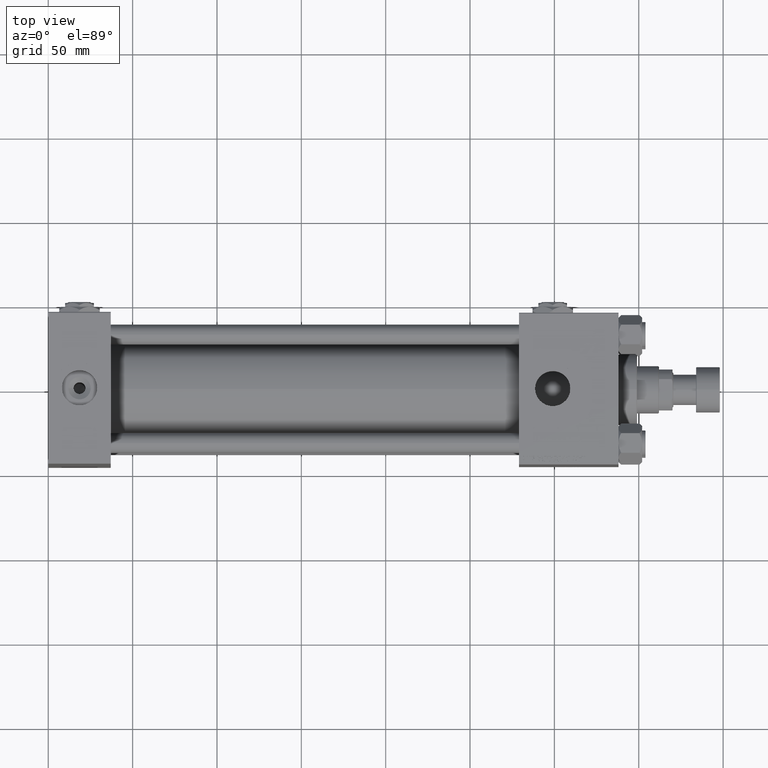
[diagram: clean part render]
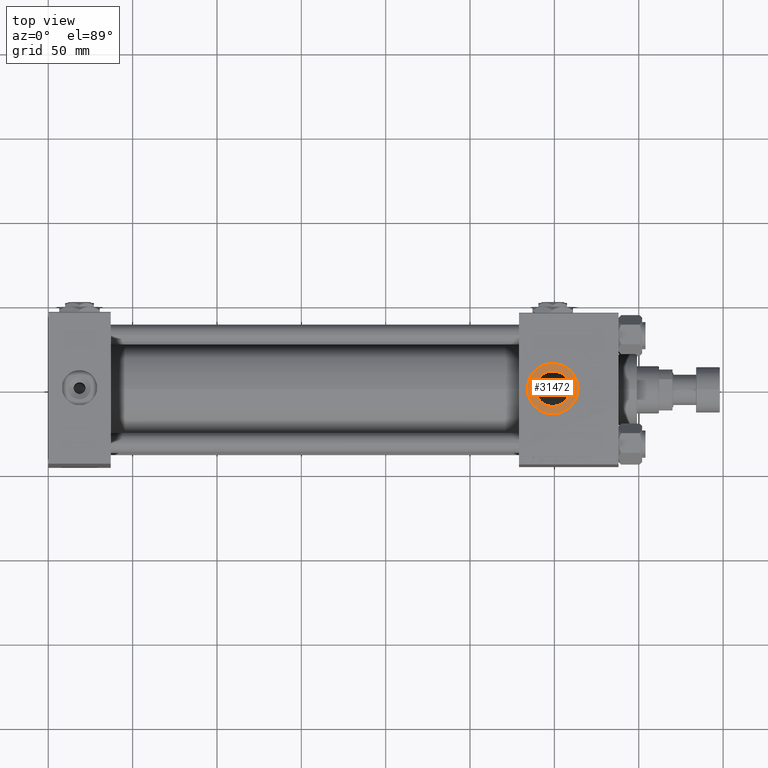
[diagram: same view with one face highlighted and labeled with its STEP entity id]
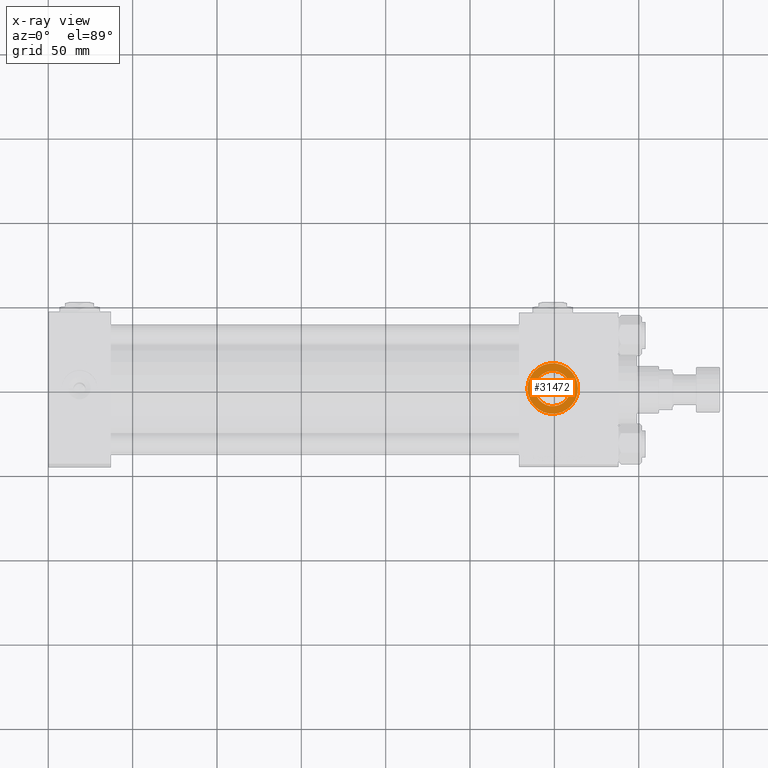
[diagram: x-ray of the same camera — body ghosted, the highlighted face saturated]
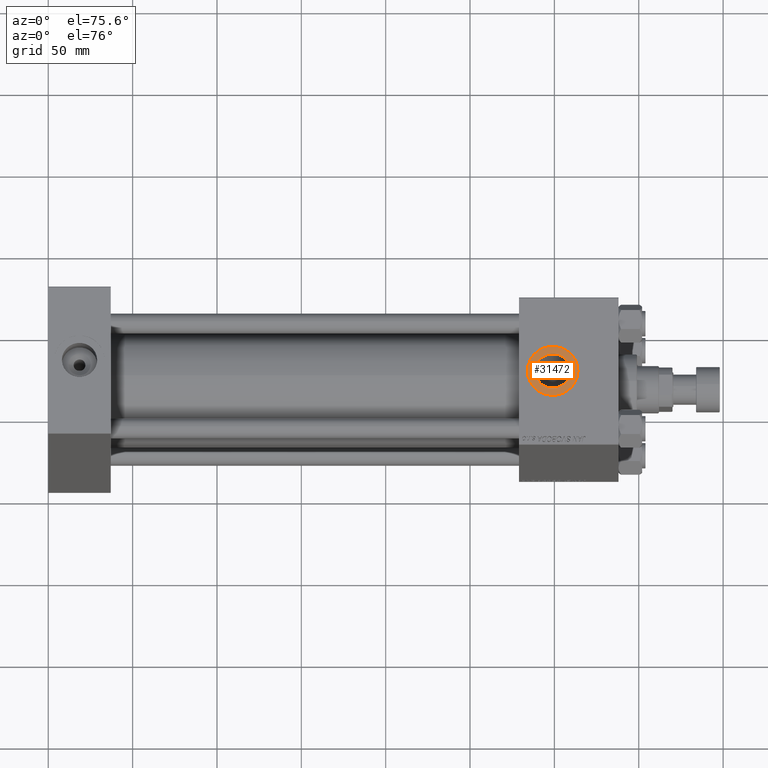
[diagram: same view with one face highlighted and labeled with its STEP entity id]
A machine part, top view. The second image highlights one B-rep face of the part: STEP entity #31472.
The next image is the same camera in x-ray: the body ghosted, the highlighted face saturated — about 0% of this face is hidden behind the body in this view.
A second angle (auxiliary view) of the same face is appended — the face is thin or edge-on in the first view.
In plain terms, the highlighted planar face has unit normal (0, 0, 1).
Its self-contained STEP definition (entity closure, byte-faithful):
#1132 = AXIS2_PLACEMENT_3D ( 'NONE', #52519, #27578, #27842 ) ;
#3366 = DIRECTION ( 'NONE',  ( 1.000000000000000000, 0.000000000000000000, 0.000000000000000000 ) ) ;
#3624 = CARTESIAN_POINT ( 'NONE',  ( 299.0000000000000000, -6.938893903907227589E-15, 44.79999999999999005 ) ) ;
#4013 = DIRECTION ( 'NONE',  ( 1.000000000000000000, 0.000000000000000000, -0.000000000000000000 ) ) ;
#4142 = DIRECTION ( 'NONE',  ( 0.000000000000000000, 0.000000000000000000, 1.000000000000000000 ) ) ;
#4542 = CARTESIAN_POINT ( 'NONE',  ( 309.4799999999999613, -6.938893903907227589E-15, 44.79999999999999005 ) ) ;
#6343 = ORIENTED_EDGE ( 'NONE', *, *, #28829, .F. ) ;
#7454 = AXIS2_PLACEMENT_3D ( 'NONE', #20307, #36481, #52173 ) ;
#7609 = DIRECTION ( 'NONE',  ( 0.000000000000000000, 0.000000000000000000, 1.000000000000000000 ) ) ;
#11323 = CIRCLE ( 'NONE', #1132, 10.47999999999998977 ) ;
#12083 = AXIS2_PLACEMENT_3D ( 'NONE', #40554, #4142, #36564 ) ;
#13289 = ORIENTED_EDGE ( 'NONE', *, *, #27301, .T. ) ;
#13703 = CARTESIAN_POINT ( 'NONE',  ( 314.0000000000000000, -6.938893903907227589E-15, 44.79999999999999005 ) ) ;
#15176 = VERTEX_POINT ( 'NONE', #13703 ) ;
#15688 = CARTESIAN_POINT ( 'NONE',  ( 284.0000000000000000, -5.101923705186193267E-15, 44.79999999999999005 ) ) ;
#20307 = CARTESIAN_POINT ( 'NONE',  ( 299.0000000000000000, -6.938893903907227589E-15, 44.79999999999999005 ) ) ;
#22706 = EDGE_LOOP ( 'NONE', ( #34649, #13289 ) ) ;
#24513 = FACE_OUTER_BOUND ( 'NONE', #22706, .T. ) ;
#25204 = VERTEX_POINT ( 'NONE', #4542 ) ;
#27301 = EDGE_CURVE ( 'NONE', #50427, #15176, #30393, .T. ) ;
#27578 = DIRECTION ( 'NONE',  ( 0.000000000000000000, 0.000000000000000000, 1.000000000000000000 ) ) ;
#27842 = DIRECTION ( 'NONE',  ( 1.000000000000000000, 0.000000000000000000, 0.000000000000000000 ) ) ;
#27975 = EDGE_LOOP ( 'NONE', ( #43935, #6343 ) ) ;
#28220 = CIRCLE ( 'NONE', #12083, 15.00000000000001421 ) ;
#28829 = EDGE_CURVE ( 'NONE', #35409, #25204, #44036, .T. ) ;
#30393 = CIRCLE ( 'NONE', #7454, 15.00000000000001421 ) ;
#31472 = ADVANCED_FACE ( 'NONE', ( #44157, #24513 ), #36174, .T. ) ;
#33065 = AXIS2_PLACEMENT_3D ( 'NONE', #40155, #36696, #4013 ) ;
#34649 = ORIENTED_EDGE ( 'NONE', *, *, #40757, .T. ) ;
#35409 = VERTEX_POINT ( 'NONE', #49133 ) ;
#35542 = AXIS2_PLACEMENT_3D ( 'NONE', #3624, #7609, #3366 ) ;
#36174 = PLANE ( 'NONE',  #33065 ) ;
#36481 = DIRECTION ( 'NONE',  ( 0.000000000000000000, 0.000000000000000000, 1.000000000000000000 ) ) ;
#36564 = DIRECTION ( 'NONE',  ( 1.000000000000000000, 0.000000000000000000, 0.000000000000000000 ) ) ;
#36696 = DIRECTION ( 'NONE',  ( 0.000000000000000000, 0.000000000000000000, 1.000000000000000000 ) ) ;
#40155 = CARTESIAN_POINT ( 'NONE',  ( 299.0000000000000000, -6.938893903907227589E-15, 44.79999999999999005 ) ) ;
#40554 = CARTESIAN_POINT ( 'NONE',  ( 299.0000000000000000, -6.938893903907227589E-15, 44.79999999999999005 ) ) ;
#40757 = EDGE_CURVE ( 'NONE', #15176, #50427, #28220, .T. ) ;
#43935 = ORIENTED_EDGE ( 'NONE', *, *, #49637, .F. ) ;
#44036 = CIRCLE ( 'NONE', #35542, 10.47999999999998977 ) ;
#44157 = FACE_BOUND ( 'NONE', #27975, .T. ) ;
#49133 = CARTESIAN_POINT ( 'NONE',  ( 288.5199999999999818, -5.655464058400803678E-15, 44.79999999999999005 ) ) ;
#49637 = EDGE_CURVE ( 'NONE', #25204, #35409, #11323, .T. ) ;
#50427 = VERTEX_POINT ( 'NONE', #15688 ) ;
#52173 = DIRECTION ( 'NONE',  ( 1.000000000000000000, 0.000000000000000000, 0.000000000000000000 ) ) ;
#52519 = CARTESIAN_POINT ( 'NONE',  ( 299.0000000000000000, -6.938893903907227589E-15, 44.79999999999999005 ) ) ;